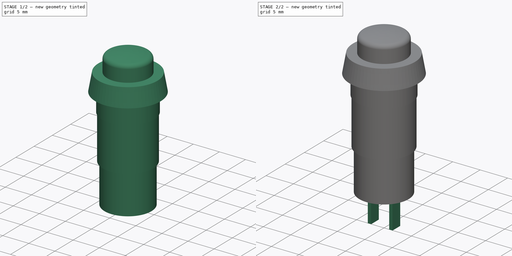
[diagram: build sequence overview — one tinted view per stage of 2, left to right]
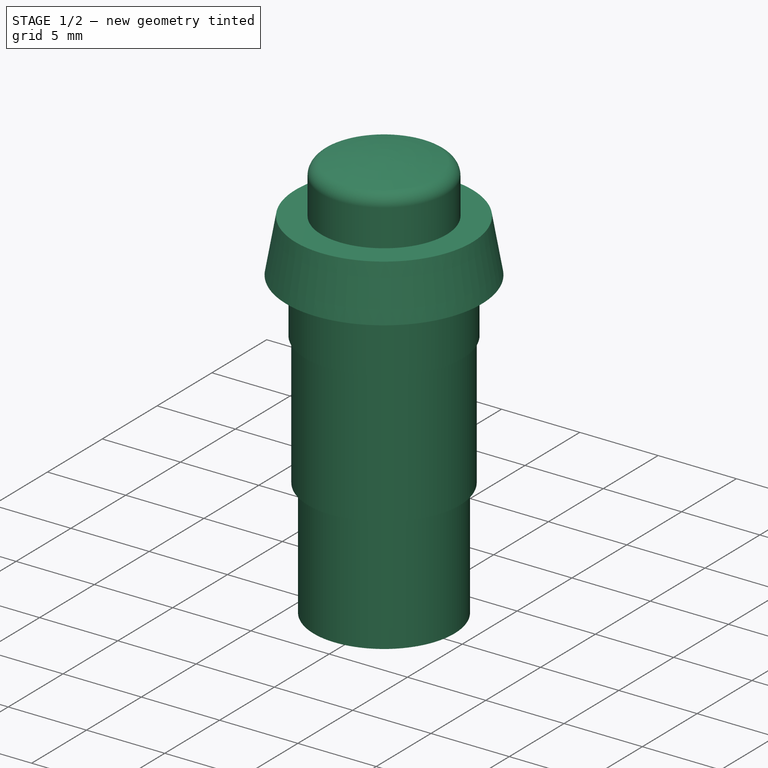
[diagram: stage 1 of 2 — iso view after this stage's code; geometry added in this stage tinted green]
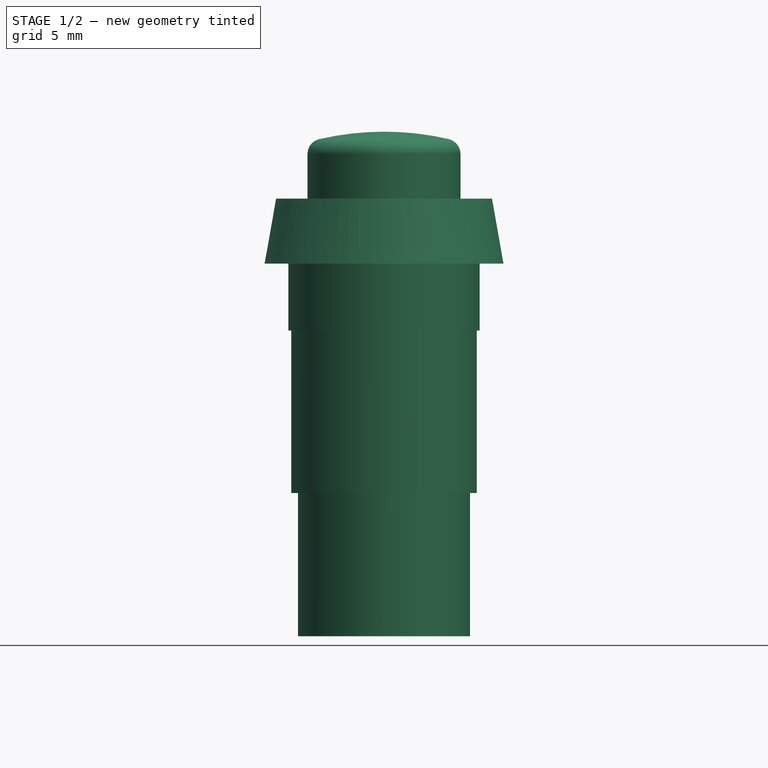
[diagram: stage 1 of 2 — front view after this stage's code; geometry added in this stage tinted green]
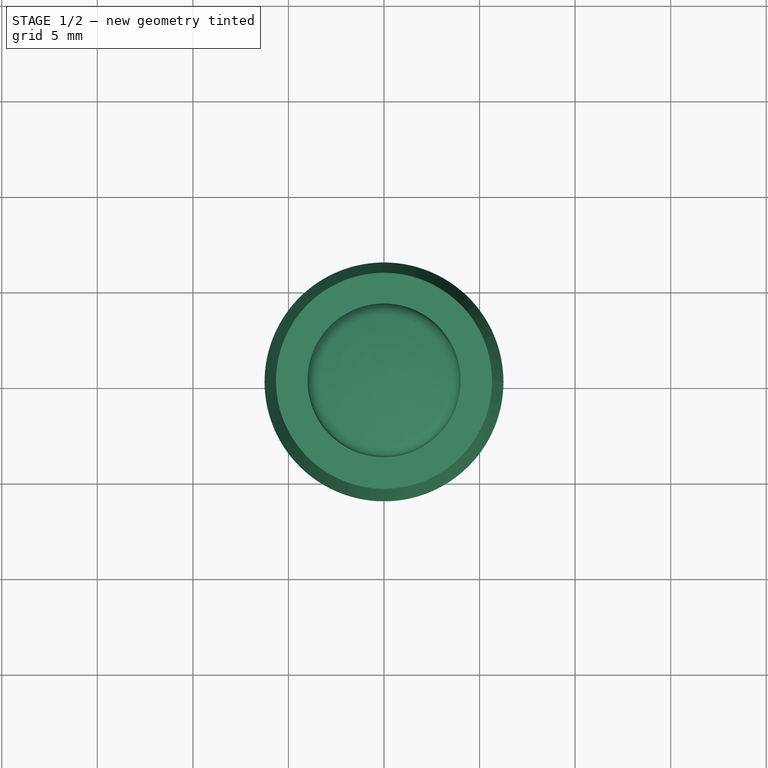
[diagram: stage 1 of 2 — top view after this stage's code; geometry added in this stage tinted green]
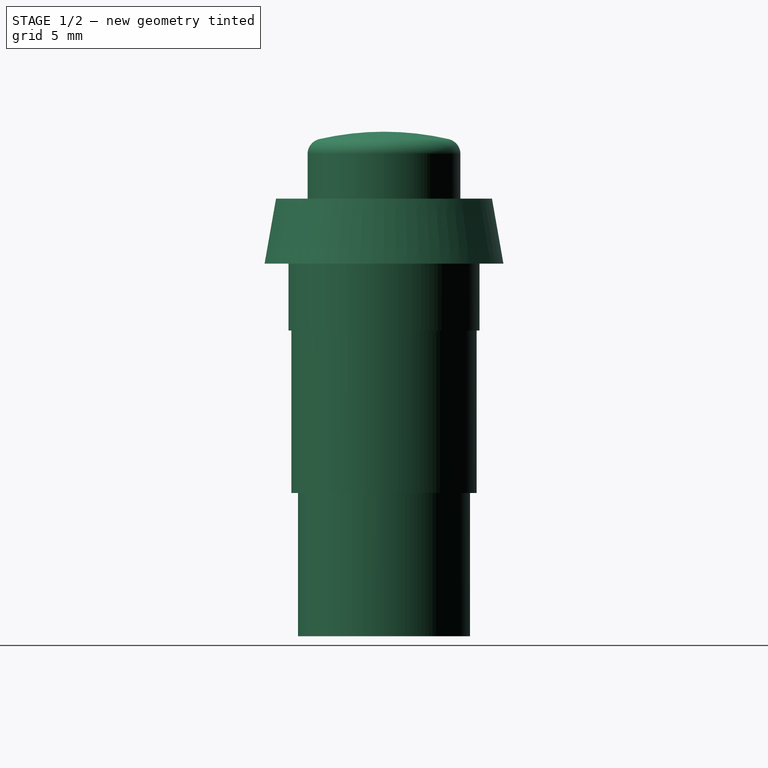
[diagram: stage 1 of 2 — right view after this stage's code; geometry added in this stage tinted green]
FCSTD DOCUMENT  (FreeCAD 0.18R15536 (Git))
Label: Switch
License: All rights reserved
LicenseURL: http://en.wikipedia.org/wiki/All_rights_reserved
objects: Sketcher::SketchObject×2, PartDesign::Revolution×1, PartDesign::Pad×1, PartDesign::Body×1
note: 7 computed .brp shape members not serialized (recipe doc carries the construction recipe); baked Part::Feature solids carry a one-line shape summary decoded from their .brp

FEATURE [Sketcher::SketchObject] Sketch
  MapMode = 5
  Placement = pos=(0,0,0) rot=(1,0,0;1.5708rad)
  Support = -> [XZ_Plane]
  sketch-geometry (13):
    g0: LineSegment StartX=0 StartY=-19.5 StartZ=0 EndX=4.5 EndY=-19.5 EndZ=0
    g1: LineSegment StartX=4.5 StartY=-19.5 StartZ=0 EndX=4.5 EndY=-12 EndZ=0
    g2: LineSegment StartX=4.5 StartY=-12 StartZ=0 EndX=4.85 EndY=-12 EndZ=0
    g3: LineSegment StartX=4.85 StartY=-12 StartZ=0 EndX=4.85 EndY=-3.5 EndZ=0
    g4: LineSegment StartX=4.85 StartY=-3.5 StartZ=0 EndX=5 EndY=-3.5 EndZ=0
    g5: LineSegment StartX=5 StartY=-3.5 StartZ=0 EndX=5 EndY=0 EndZ=0
    g6: LineSegment StartX=5 StartY=0 StartZ=0 EndX=6.25 EndY=0 EndZ=0
    g7: LineSegment StartX=6.25 StartY=0 StartZ=0 EndX=5.65049 EndY=3.4 EndZ=0
    g8: LineSegment StartX=5.65049 StartY=3.4 StartZ=0 EndX=4 EndY=3.4 EndZ=0
    g9: LineSegment StartX=4 StartY=3.4 StartZ=0 EndX=4 EndY=5.73474 EndZ=0
    g10: ArcOfCircle CenterX=0 CenterY=-8.1 CenterZ=0 NormalX=0 NormalY=0 NormalZ=1 AngleXU=0 Radius=15 StartAngle=1.34349 EndAngle=1.5708
    g11: LineSegment StartX=0 StartY=6.9 StartZ=0 EndX=0 EndY=-19.5 EndZ=0
    g12: ArcOfCircle CenterX=3.2 CenterY=5.73474 CenterZ=0 NormalX=0 NormalY=0 NormalZ=1 AngleXU=0 Radius=0.8 StartAngle=0 EndAngle=1.34349
  constraints (39):
    c: PointOnObject(g0,g-2)
    c: Horizontal(g0)
    c: Coincident(g0,g1)
    c: Vertical(g1)
    c: Coincident(g1,g2)
    c: Horizontal(g2)
    c: Coincident(g2,g3)
    c: Vertical(g3)
    c: Coincident(g3,g4)
    c: Horizontal(g4)
    c: Coincident(g4,g5)
    c: PointOnObject(g5,g-1)
    c: Vertical(g5)
    c: Coincident(g5,g6)
    c: PointOnObject(g6,g-1)
    c: Coincident(g6,g7)
    c: Coincident(g7,g8)
    c: Horizontal(g8)
    c: Coincident(g8,g9)
    c: Vertical(g9)
    c: PointOnObject(g10,g-2)
    c: PointOnObject(g10,g-2)
    c: Coincident(g11,g10)
    c: Coincident(g11,g0)
    c: DistanceX(g0,g0) = 4.5
    c: DistanceY(g0,g2) = 7.5
    c: DistanceX(g0,g2) = 4.85
    c: DistanceY(g0,g4) = 16
    c: DistanceX(g0,g4) = 5
    c: DistanceY(g0,g6) = 19.5
    c: DistanceY(g7,g7) = 3.4
    c: DistanceX(g10,g6) = 6.25
    c: Angle(g-2,g7) = 0.174533
    c: DistanceX(g-1,g8) = 4
    c: DistanceY(g0,g10) = 26.4
    c: Radius(g10) = 15
    c: Tangent(g10,g12) = -1.5708
    c: Tangent(g9,g12) = -1.5708
    c: Radius(g12) = 0.8
FEATURE [PartDesign::Revolution] Revolution
  Angle = 360
  Axis = (0,2e-16,1)
  Base = (0,0,0)
  Placement = pos=(0,0,0) rot=(1,0,0;1.5708rad)
  Profile = -> Sketch
  ReferenceAxis = -> Sketch [V_Axis]
  Reversed = true
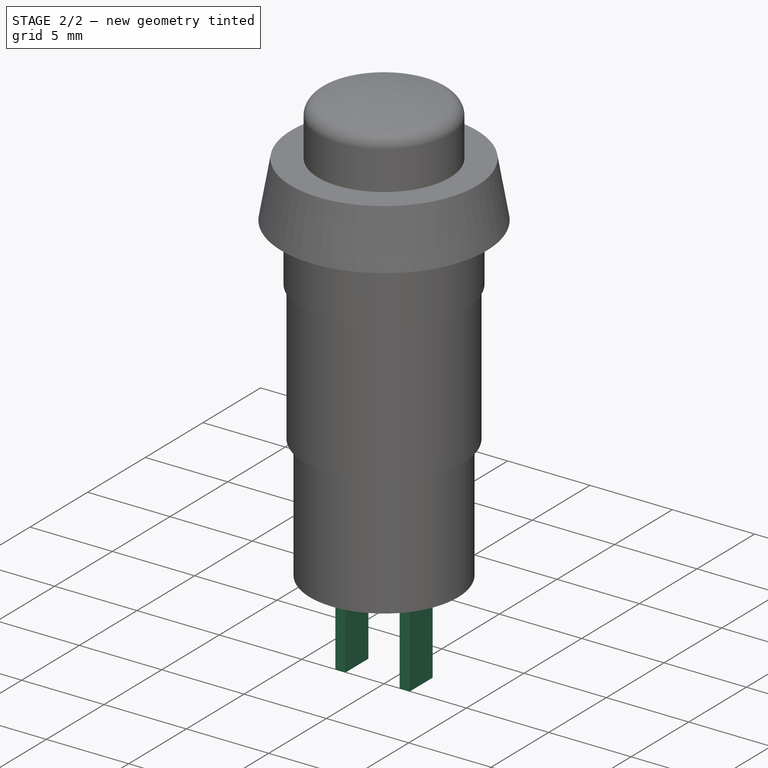
[diagram: stage 2 of 2 — iso view after this stage's code; geometry added in this stage tinted green]
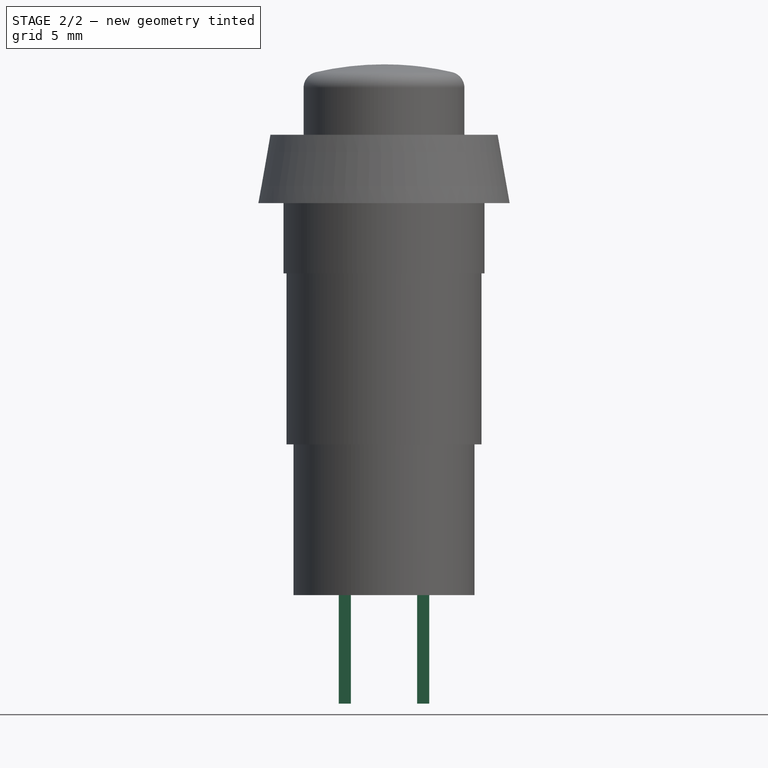
[diagram: stage 2 of 2 — front view after this stage's code; geometry added in this stage tinted green]
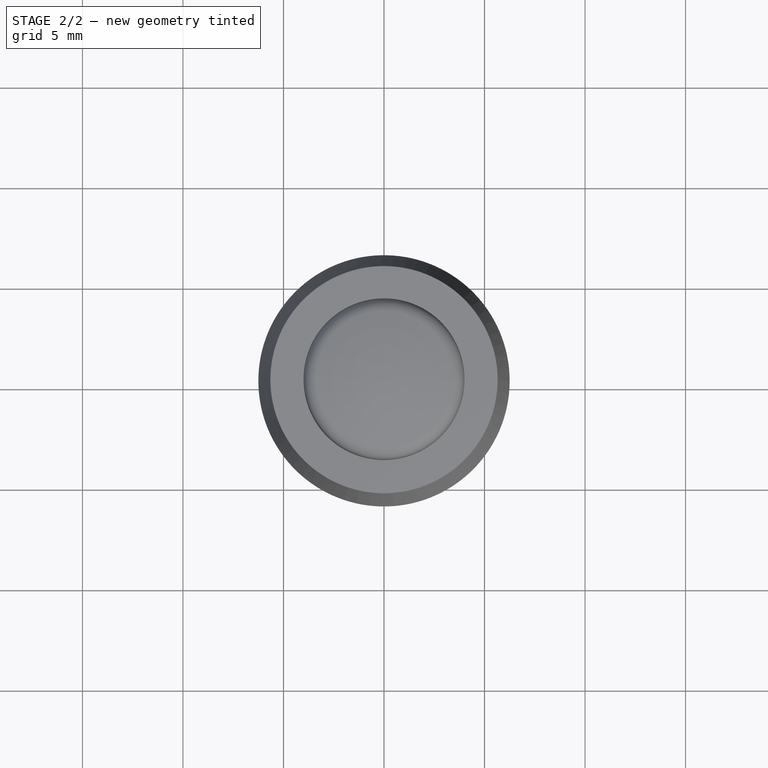
[diagram: stage 2 of 2 — top view after this stage's code; geometry added in this stage tinted green]
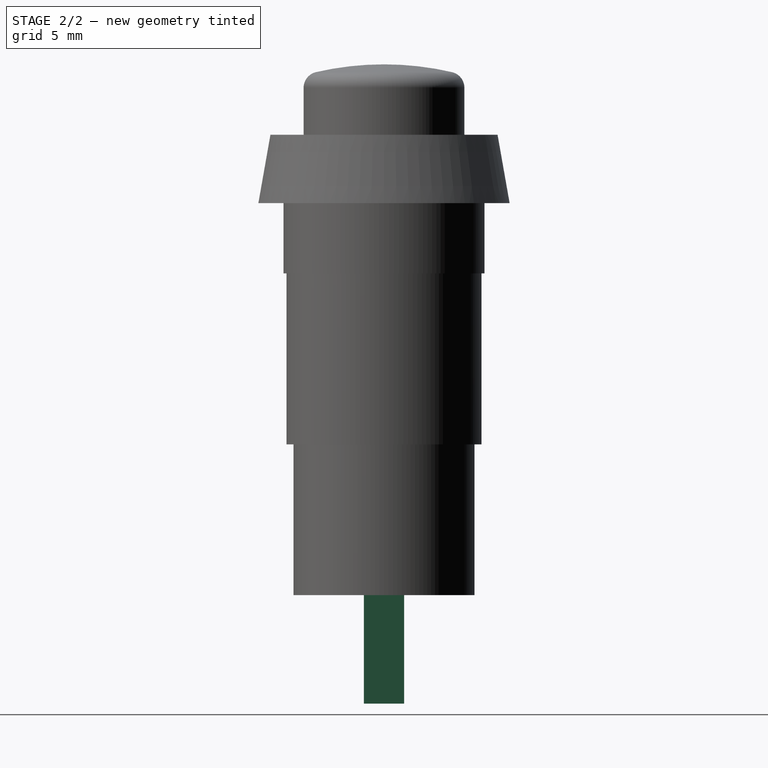
[diagram: stage 2 of 2 — right view after this stage's code; geometry added in this stage tinted green]
FEATURE [Sketcher::SketchObject] Sketch001
  MapMode = 5
  Placement = pos=(0,-1.3e-14,-19.5) rot=(1,0,0;3.14159rad)
  Support = -> [Revolution]
  sketch-geometry (8):
    g0: LineSegment StartX=-2.25 StartY=1 StartZ=0 EndX=-1.65 EndY=1 EndZ=0
    g1: LineSegment StartX=-1.65 StartY=1 StartZ=0 EndX=-1.65 EndY=-1 EndZ=0
    g2: LineSegment StartX=-1.65 StartY=-1 StartZ=0 EndX=-2.25 EndY=-1 EndZ=0
    g3: LineSegment StartX=-2.25 StartY=-1 StartZ=0 EndX=-2.25 EndY=1 EndZ=0
    g4: LineSegment StartX=1.65 StartY=1 StartZ=0 EndX=2.25 EndY=1 EndZ=0
    g5: LineSegment StartX=2.25 StartY=1 StartZ=0 EndX=2.25 EndY=-1 EndZ=0
    g6: LineSegment StartX=2.25 StartY=-1 StartZ=0 EndX=1.65 EndY=-1 EndZ=0
    g7: LineSegment StartX=1.65 StartY=-1 StartZ=0 EndX=1.65 EndY=1 EndZ=0
  constraints (22):
    c: Coincident(g0,g1)
    c: Coincident(g1,g2)
    c: Coincident(g2,g3)
    c: Coincident(g3,g0)
    c: Horizontal(g0)
    c: Horizontal(g2)
    c: Vertical(g1)
    c: Vertical(g3)
    c: Coincident(g4,g5)
    c: Coincident(g5,g6)
    c: Coincident(g6,g7)
    c: Coincident(g7,g4)
    c: Horizontal(g4)
    c: Horizontal(g6)
    c: Vertical(g7)
    c: DistanceX(g4,g4) = 0.6
    c: DistanceY(g5,g5) = 2
    c: Equal(g4,g0)
    c: Symmetric(g5,g4,g-1)
    c: PointOnObject(g1,g6)
    c: Symmetric(g4,g0,g-2)
    c: DistanceX(g0,g4) = 4.5
FEATURE [PartDesign::Pad] Pad
  BaseFeature = -> Revolution
  Length = 5.4
  Length2 = 100
  Placement = pos=(0,0,0) rot=(1,0,0;1.5708rad)
  Profile = -> Sketch001
  Type = 0
FEATURE [PartDesign::Body] Body
  Group = -> [Sketch,Revolution,Sketch001,Pad]
  Origin = -> Origin
  Tip = -> Pad
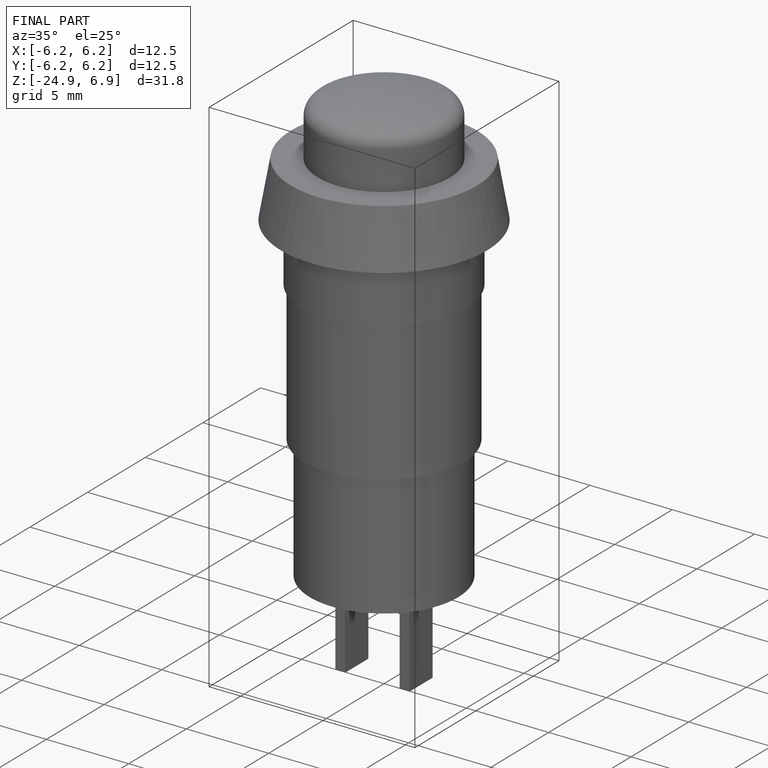
[diagram: finished part — iso view with bounding-box wireframe]
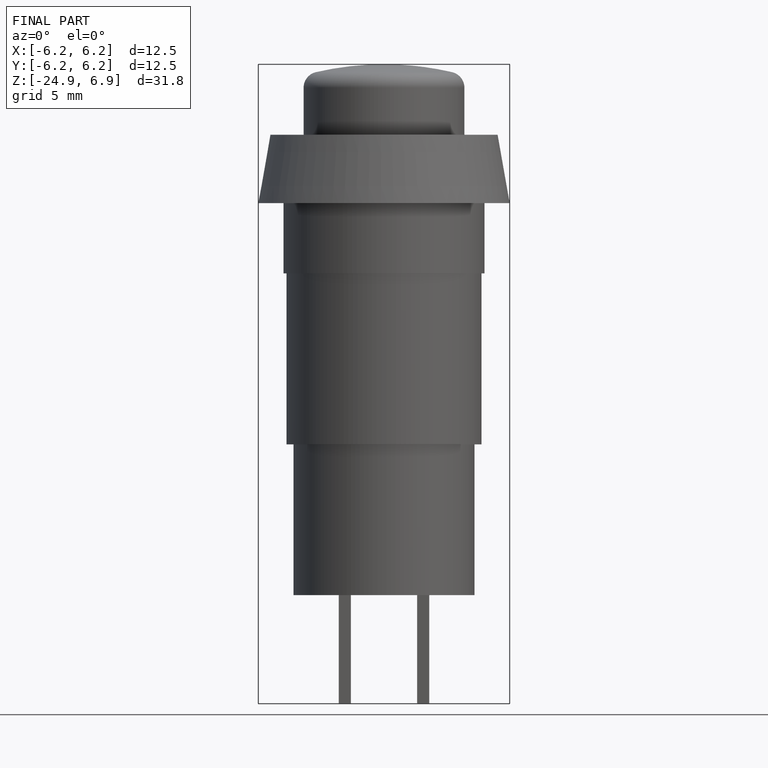
[diagram: finished part — front view with bounding-box wireframe]
